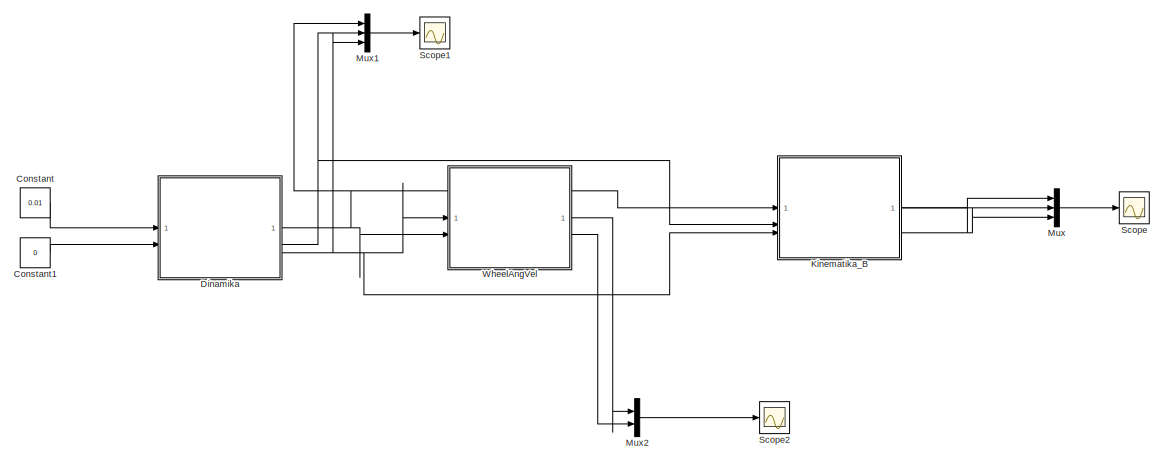
[diagram: root canvas - part 1/2, top left region]
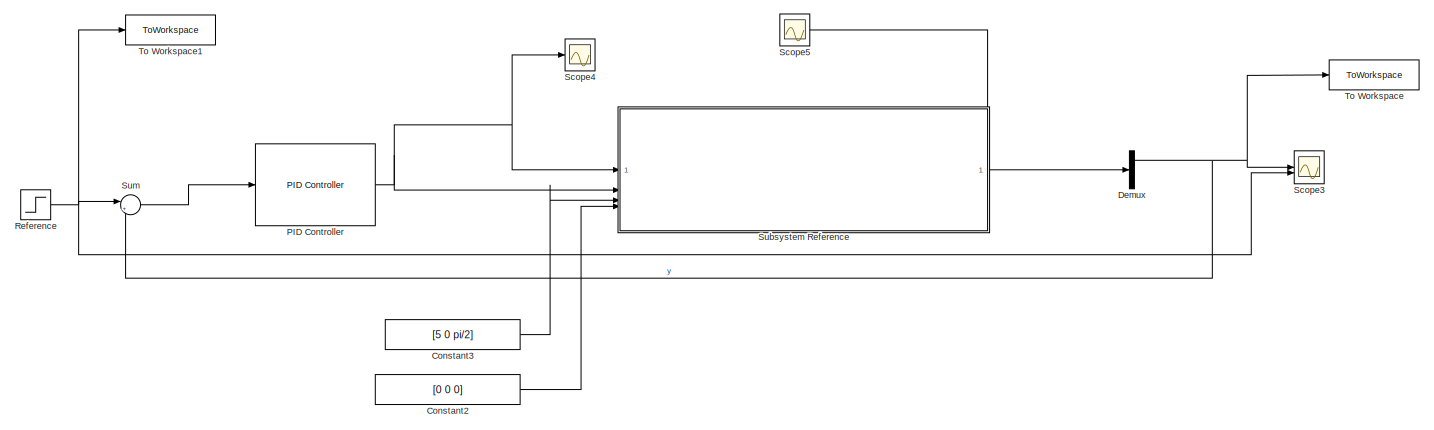
[diagram: root canvas - part 2/2, bottom center region]
MODEL slx_aa36e05badb5
KIND model
CONFIG AbsTol = auto
CONFIG EnableMultiTasking = off
CONFIG FixedStep = auto
CONFIG MaxStep = auto
CONFIG MinStep = auto
CONFIG RelTol = 1e-3
CONFIG SampleTimeConstraint = Unconstrained
CONFIG SolverName = VariableStepAuto
CONFIG StartTime = 0.0
CONFIG StopTime = 20
BLOCK [Constant] Constant
  Commented = on
  Value = 0.01
BLOCK [Constant] Constant1
  Commented = on
  Value = 0
BLOCK [Constant] Constant2
  NameLocation = top
  Value = [0 0 0]
BLOCK [Constant] Constant3
  NameLocation = top
  Value = [5 0 pi/2]
BLOCK [Demux] Demux
  Outputs = 3
BLOCK [SubSystem] Dinamika
  Commented = on
  ReferencedSubsystem = Dinamika
BLOCK [SubSystem] Kinematika_B
  Commented = on
  ReferencedSubsystem = Kinematika_B
BLOCK [Mux] Mux
  Commented = on
  DisplayOption = bar
  Inputs = 3
BLOCK [Mux] Mux1
  Commented = on
  DisplayOption = bar
  Inputs = 3
BLOCK [Mux] Mux2
  Commented = on
  DisplayOption = bar
  Inputs = 2
BLOCK [Reference] PID Controller  REF=slpidlib/PID Controller
  LibrarySourceBlock = simulink/Continuous/PID Controller
  SourceBlock = slpidlib/PID Controller
  SourceType = PID 1dof
BLOCK [Step] Reference
  SampleTime = 0
BLOCK [Scope] Scope
  Commented = on
  Floating = off
  NumInputPorts = 1
  ScopeSpecificationString = Simulink.scopes.TimeScopeBlockCfg('CurrentConfiguration', extmgr.ConfigurationSet(extmgr.Configuration('Core','General UI',true),extmgr.Configuration('Core','Source UI',true),extmgr.Configuration('Sources','WiredSimulink',true),extmgr.Configuration('Visuals','Time Domain',true,'SerializedDisplays',{struct('MinYLimReal','-5.49998','MaxYLimReal','9.49997','YLabelReal','','MinYLimMag','0.00000','MaxY...<+1461ch>
BLOCK [Scope] Scope1
  Commented = on
  Floating = off
  NumInputPorts = 1
  ScopeSpecificationString = Simulink.scopes.TimeScopeBlockCfg('CurrentConfiguration', extmgr.ConfigurationSet(extmgr.Configuration('Core','General UI',true),extmgr.Configuration('Core','Source UI',true),extmgr.Configuration('Sources','WiredSimulink',true,'DataLoggingVariableName','ScopeData1'),extmgr.Configuration('Visuals','Time Domain',true,'SerializedDisplays',{struct('MinYLimReal','-0.30628','MaxYLimReal','2.75653','YLab...<+1494ch>
BLOCK [Scope] Scope2
  Commented = on
  Floating = off
  NumInputPorts = 1
  ScopeSpecificationString = Simulink.scopes.TimeScopeBlockCfg('CurrentConfiguration', extmgr.ConfigurationSet(extmgr.Configuration('Core','General UI',true),extmgr.Configuration('Core','Source UI',true),extmgr.Configuration('Sources','WiredSimulink',true,'DataLoggingVariableName','ScopeData1'),extmgr.Configuration('Visuals','Time Domain',true,'SerializedDisplays',{struct('MinYLimReal','-15.6969','MaxYLimReal','141.27214','YL...<+1485ch>
BLOCK [Scope] Scope3
  Floating = off
  NumInputPorts = 2
  ScopeSpecificationString = Simulink.scopes.TimeScopeBlockCfg('CurrentConfiguration', extmgr.ConfigurationSet(extmgr.Configuration('Core','General UI',true),extmgr.Configuration('Core','Source UI',true),extmgr.Configuration('Sources','WiredSimulink',true,'DataLoggingVariableName','Mod','DataLoggingSaveFormat','StructureWithTime'),extmgr.Configuration('Visuals','Time Domain',true,'SerializedDisplays',{struct('MinYLimReal','-0...<+1723ch>
BLOCK [Scope] Scope4
  Floating = off
  NumInputPorts = 1
  ScopeSpecificationString = Simulink.scopes.TimeScopeBlockCfg('CurrentConfiguration', extmgr.ConfigurationSet(extmgr.Configuration('Core','General UI',true),extmgr.Configuration('Core','Source UI',true),extmgr.Configuration('Sources','WiredSimulink',true,'DataLoggingVariableName','ScopeData1'),extmgr.Configuration('Visuals','Time Domain',true,'SerializedDisplays',{struct('MinYLimReal','-0.10675','MaxYLimReal','0.10675','YLab...<+1481ch>
BLOCK [Scope] Scope5
  Floating = off
  NumInputPorts = 1
  ScopeSpecificationString = Simulink.scopes.TimeScopeBlockCfg('CurrentConfiguration', extmgr.ConfigurationSet(extmgr.Configuration('Core','General UI',true),extmgr.Configuration('Core','Source UI',true),extmgr.Configuration('Sources','WiredSimulink',true,'DataLoggingVariableName','ScopeData1'),extmgr.Configuration('Visuals','Time Domain',true,'SerializedDisplays',{struct('MinYLimReal','3.85896','MaxYLimReal','4.01567','YLabe...<+1497ch>
BLOCK [SubSystem] Subsystem Reference
  PortSchema = {"entries":[{"content":{"sides":[{"content":{"connectorIds":["In1","In2","In3","In4"]},"type":"ConnectorPlacement.EquallySpacedRectSide","uuid":"994f12c1-6a05-4910-87af-f997a779aab0"},{"content":{"connectorIds":["Out4"],"side":"RIGHT"},"type":"ConnectorPlacement.EquallySpacedRectSide","uuid":"c2ea19c3-4428-415f-bae7-c315b4b32cad"},{"content":{"connectorIds":["Out1","Out2","Out3"],"side":"TOP"},"ty...<+278ch>
  ReferencedSubsystem = Szakaszmotornelkul
BLOCK [Sum] Sum
  Inputs = |+-
BLOCK [ToWorkspace] To Workspace
  FixptAsFi = on
  MaxDataPoints = inf
  SampleTime = -1
  SaveFormat = Timeseries
  VariableName = SimB
BLOCK [ToWorkspace] To Workspace1
  FixptAsFi = on
  MaxDataPoints = inf
  SampleTime = -1
  SaveFormat = Timeseries
  VariableName = Gerj
BLOCK [SubSystem] WheelAngVel
  Commented = on
  ReferencedSubsystem = WheelAngVel
LINE Constant1:1 -> Dinamika:2
LINE Constant2:1 -> Subsystem Reference:4
LINE Constant3:1 -> Subsystem Reference:3
LINE Constant:1 -> Dinamika:1
NET Demux:1 -> Scope3:1, Sum:2, To Workspace:1
NET Dinamika:1 -> Kinematika_B:1, Mux1:1, WheelAngVel:2
NET Dinamika:2 -> Kinematika_B:2, Mux1:2
NET Dinamika:3 -> Kinematika_B:3, Mux1:3, WheelAngVel:1
LINE Kinematika_B:1 -> Mux:1
LINE Kinematika_B:2 -> Mux:2
LINE Kinematika_B:3 -> Mux:3
LINE Mux1:1 -> Scope1:1
LINE Mux2:1 -> Scope2:1
LINE Mux:1 -> Scope:1
NET PID Controller:1 -> Scope4:1, Subsystem Reference:1, Subsystem Reference:2
NET Reference:1 -> Scope3:2, Sum:1, To Workspace1:1
LINE Subsystem Reference:1 -> Scope5:1
LINE Subsystem Reference:4 -> Demux:1
LINE Sum:1 -> PID Controller:1
LINE WheelAngVel:1 -> Mux2:1
LINE WheelAngVel:2 -> Mux2:2
note: NET lines group one-source signal fan-out (src -> all destinations, sorted); 1:1 wires keep LINE
